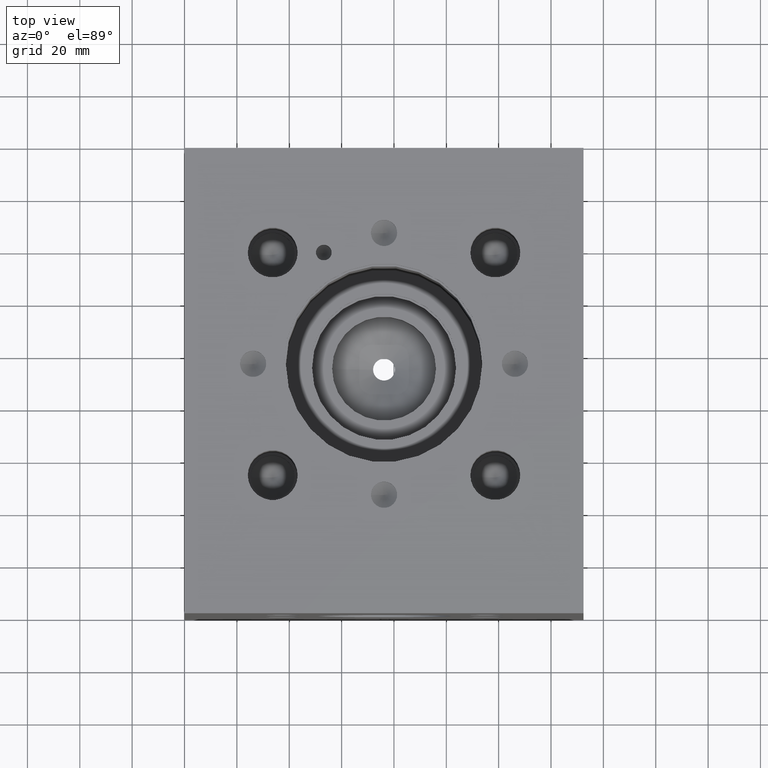
[diagram: clean part render]
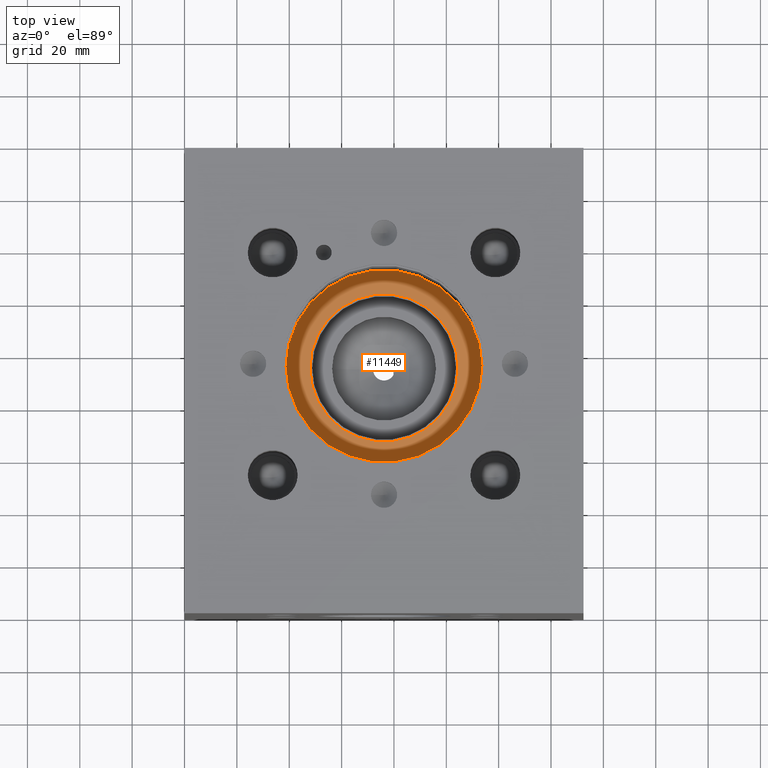
[diagram: same view with one face highlighted and labeled with its STEP entity id]
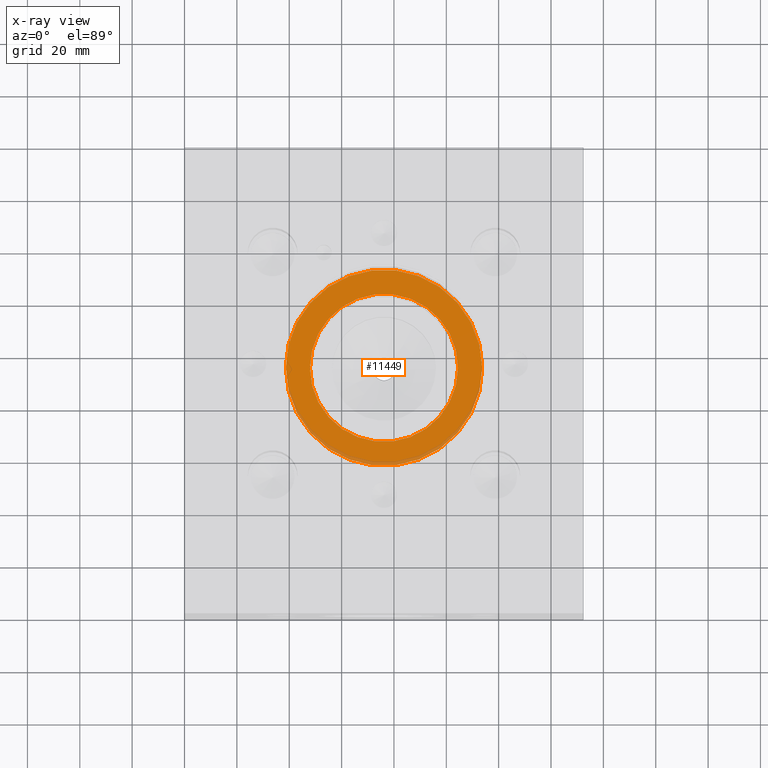
[diagram: x-ray of the same camera — body ghosted, the highlighted face saturated]
A machine part, top view. The second image highlights one B-rep face of the part: STEP entity #11449.
The next image is the same camera in x-ray: the body ghosted, the highlighted face saturated — about 6% of this face is hidden behind the body in this view.
In plain terms, the highlighted planar face has unit normal (0, 0, -1).
Its self-contained STEP definition (entity closure, byte-faithful):
#401=CIRCLE('',#12216,37.5031);
#402=CIRCLE('',#12217,37.5031);
#403=CIRCLE('',#12219,28.3083);
#404=CIRCLE('',#12220,28.3083);
#498=FACE_BOUND('',#2045,.T.);
#1377=FACE_OUTER_BOUND('',#2044,.T.);
#2044=EDGE_LOOP('',(#9999,#10000));
#2045=EDGE_LOOP('',(#10001,#10002));
#5358=VERTEX_POINT('',#19364);
#5359=VERTEX_POINT('',#19366);
#5360=VERTEX_POINT('',#19370);
#5361=VERTEX_POINT('',#19371);
#6927=EDGE_CURVE('',#5358,#5359,#401,.T.);
#6928=EDGE_CURVE('',#5359,#5358,#402,.T.);
#6929=EDGE_CURVE('',#5360,#5361,#403,.T.);
#6930=EDGE_CURVE('',#5361,#5360,#404,.T.);
#9999=ORIENTED_EDGE('',*,*,#6928,.F.);
#10000=ORIENTED_EDGE('',*,*,#6927,.F.);
#10001=ORIENTED_EDGE('',*,*,#6929,.T.);
#10002=ORIENTED_EDGE('',*,*,#6930,.T.);
#10455=PLANE('',#12218);
#11449=ADVANCED_FACE('',(#1377,#498),#10455,.F.);
#12216=AXIS2_PLACEMENT_3D('',#19367,#14821,#14822);
#12217=AXIS2_PLACEMENT_3D('',#19368,#14823,#14824);
#12218=AXIS2_PLACEMENT_3D('',#19369,#14825,#14826);
#12219=AXIS2_PLACEMENT_3D('',#19372,#14827,#14828);
#12220=AXIS2_PLACEMENT_3D('',#19373,#14829,#14830);
#14821=DIRECTION('center_axis',(0.,0.,-1.));
#14822=DIRECTION('ref_axis',(1.,0.,0.));
#14823=DIRECTION('center_axis',(0.,0.,-1.));
#14824=DIRECTION('ref_axis',(1.,0.,0.));
#14825=DIRECTION('center_axis',(0.,0.,-1.));
#14826=DIRECTION('ref_axis',(-1.,0.,0.));
#14827=DIRECTION('center_axis',(0.,0.,-1.));
#14828=DIRECTION('ref_axis',(1.,0.,0.));
#14829=DIRECTION('center_axis',(0.,0.,-1.));
#14830=DIRECTION('ref_axis',(1.,0.,0.));
#19364=CARTESIAN_POINT('',(38.6969,95.25,65.405));
#19366=CARTESIAN_POINT('',(113.7031,95.25,65.405));
#19367=CARTESIAN_POINT('Origin',(76.2,95.25,65.405));
#19368=CARTESIAN_POINT('Origin',(76.2,95.25,65.405));
#19369=CARTESIAN_POINT('Origin',(104.5083,95.25,65.405));
#19370=CARTESIAN_POINT('',(104.5083,95.25,65.405));
#19371=CARTESIAN_POINT('',(47.8917,95.25,65.405));
#19372=CARTESIAN_POINT('Origin',(76.2,95.25,65.405));
#19373=CARTESIAN_POINT('Origin',(76.2,95.25,65.405));